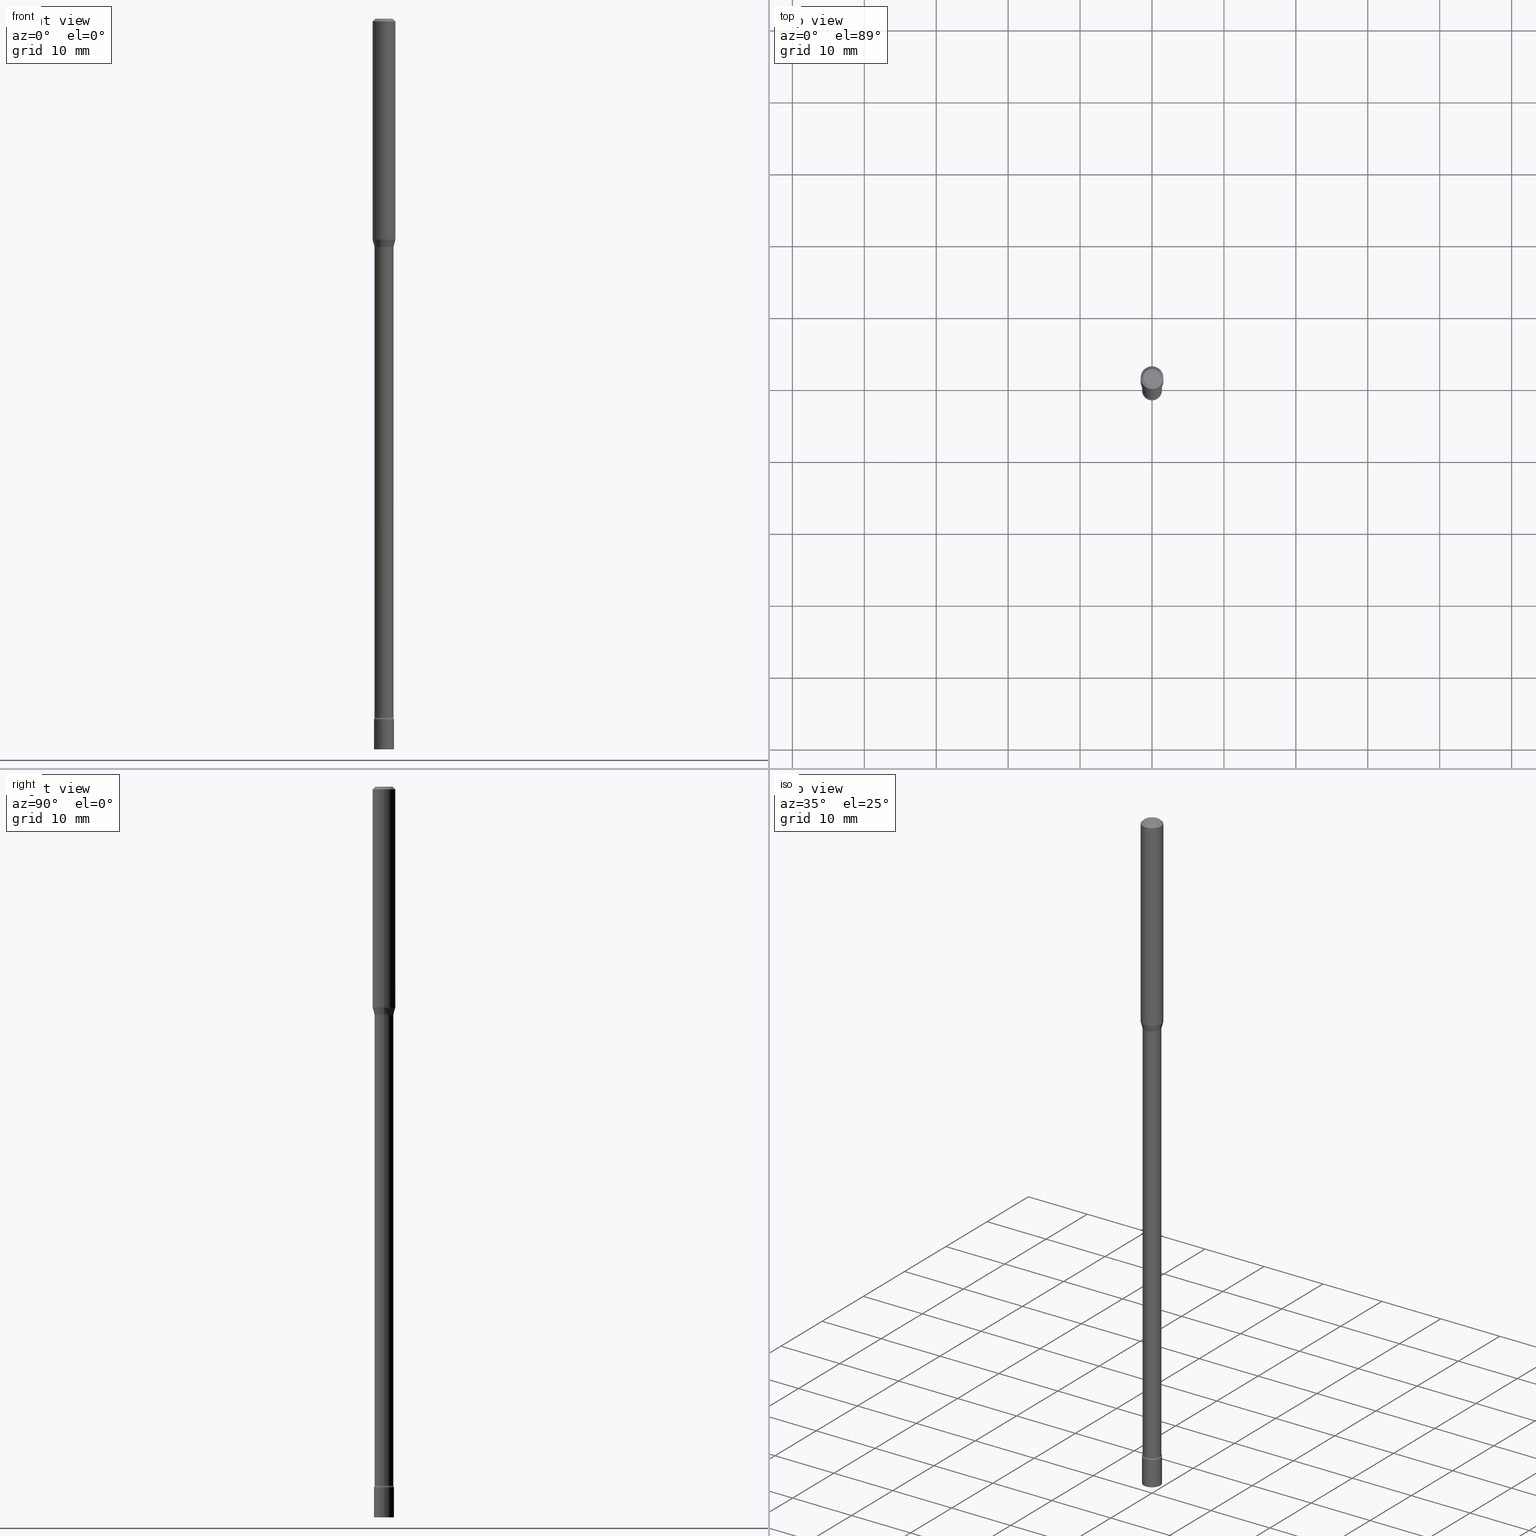
[diagram: canonical four-view strip — front | top / right | iso, engineering-drawing reading convention]
A machine part, canonical four-view strip (front | top / right | iso — engineering-drawing reading convention). The complete STEP part file that produces these views, byte-faithful:
ISO-10303-21;
HEADER;
FILE_DESCRIPTION (( 'STEP AP203' ),
    '1' );
FILE_NAME ('09766.STEP',
    '2024-03-09T01:51:35',
    ( '' ),
    ( '' ),
    'SwSTEP 2.0',
    'SolidWorks 2023',
    '' );
FILE_SCHEMA (( 'CONFIG_CONTROL_DESIGN' ));
ENDSEC;

DATA;
#1 = APPROVAL_ROLE ( '' ) ;
#2 = ORIENTED_EDGE ( 'NONE', *, *, #494, .T. ) ;
#3 = EDGE_LOOP ( 'NONE', ( #397, #445, #237, #352 ) ) ;
#4 = VECTOR ( 'NONE', #121, 39.37007874015748143 ) ;
#5 = ORIENTED_EDGE ( 'NONE', *, *, #433, .T. ) ;
#6 = DIRECTION ( 'NONE',  ( 1.000000000000000000, -6.982962677686265922E-15, 4.876176775795935793E-29 ) ) ;
#7 = CARTESIAN_POINT ( 'NONE',  ( 9.355418007508613870E-29, -1.335705747203898990E-14, -3.825613307291703347 ) ) ;
#8 = CC_DESIGN_PERSON_AND_ORGANIZATION_ASSIGNMENT ( #519, #361, ( #114 ) ) ;
#9 = ORIENTED_EDGE ( 'NONE', *, *, #463, .F. ) ;
#10 = DIRECTION ( 'NONE',  ( 1.000000000000000000, -6.982962677686270655E-15, 0.000000000000000000 ) ) ;
#11 = ORIENTED_EDGE ( 'NONE', *, *, #272, .T. ) ;
#12 = CYLINDRICAL_SURFACE ( 'NONE', #278, 0.06250000000000000000 ) ;
#13 = AXIS2_PLACEMENT_3D ( 'NONE', #455, #334, #454 ) ;
#14 = AXIS2_PLACEMENT_3D ( 'NONE', #292, #104, #300 ) ;
#15 = AXIS2_PLACEMENT_3D ( 'NONE', #197, #253, #10 ) ;
#16 = ADVANCED_FACE ( 'NONE', ( #236 ), #328, .F. ) ;
#17 = CARTESIAN_POINT ( 'NONE',  ( 0.04749999999999999362, -4.035134999187579609E-16, -2.891391092786643933E-17 ) ) ;
#18 = CARTESIAN_POINT ( 'NONE',  ( -0.04749999999999999362, 3.578768372314209027E-16, -2.891391092787141902E-17 ) ) ;
#19 = DIRECTION ( 'NONE',  ( -1.000000000000000000, 6.982962677686265922E-15, -4.876176775795935793E-29 ) ) ;
#20 = DIRECTION ( 'NONE',  ( -2.445468806185136597E-29, 3.491481338843145583E-15, 1.000000000000000000 ) ) ;
#21 = CARTESIAN_POINT ( 'NONE',  ( -0.06250000000000000000, -3.779534297601264220E-15, -1.209693851278256016 ) ) ;
#22 = LINE ( 'NONE', #390, #103 ) ;
#23 = AXIS2_PLACEMENT_3D ( 'NONE', #452, #246, #206 ) ;
#24 = DIRECTION ( 'NONE',  ( -1.000000000000000000, 7.105427357600997914E-15, 0.000000000000000000 ) ) ;
#25 =( NAMED_UNIT ( * ) PLANE_ANGLE_UNIT ( ) SI_UNIT ( $, .RADIAN. ) );
#26 = DIRECTION ( 'NONE',  ( -2.445468806185136597E-29, 3.491481338843145583E-15, 1.000000000000000000 ) ) ;
#27 = FACE_OUTER_BOUND ( 'NONE', #434, .T. ) ;
#28 = ORIENTED_EDGE ( 'NONE', *, *, #209, .F. ) ;
#29 = CARTESIAN_POINT ( 'NONE',  ( -0.06670000000000027296, -1.288312546728700163E-14, -3.825613307291703347 ) ) ;
#30 = CARTESIAN_POINT ( 'NONE',  ( 3.052171280354343376E-29, -4.357691679140319609E-15, -1.248092501787273045 ) ) ;
#31 = VECTOR ( 'NONE', #242, 39.37007874015748143 ) ;
#32 = LOCAL_TIME ( 20, 51, 35.00000000000000000, #73 ) ;
#33 = DIRECTION ( 'NONE',  ( 1.000000000000000000, -6.982962677686266711E-15, 0.000000000000000000 ) ) ;
#34 = APPROVAL_STATUS ( 'not_yet_approved' ) ;
#35 = ORIENTED_EDGE ( 'NONE', *, *, #245, .T. ) ;
#36 = EDGE_CURVE ( 'NONE', #438, #520, #423, .T. ) ;
#37 = ORIENTED_EDGE ( 'NONE', *, *, #150, .T. ) ;
#38 = CIRCLE ( 'NONE', #221, 0.01500000000000002720 ) ;
#39 = APPROVAL_ROLE ( '' ) ;
#40 = EDGE_LOOP ( 'NONE', ( #263, #41, #310, #2 ) ) ;
#41 = ORIENTED_EDGE ( 'NONE', *, *, #517, .F. ) ;
#42 = DATE_AND_TIME ( #405, #321 ) ;
#43 = VERTEX_POINT ( 'NONE', #362 ) ;
#44 = PRODUCT_DEFINITION_SHAPE ( 'NONE', 'NONE',  #418 ) ;
#45 = EDGE_LOOP ( 'NONE', ( #9, #269, #196, #109 ) ) ;
#46 = VERTEX_POINT ( 'NONE', #86 ) ;
#47 = AXIS2_PLACEMENT_3D ( 'NONE', #281, #189, #451 ) ;
#48 = EDGE_CURVE ( 'NONE', #483, #188, #435, .T. ) ;
#49 = AXIS2_PLACEMENT_3D ( 'NONE', #382, #293, #101 ) ;
#50 = DIRECTION ( 'NONE',  ( 1.000000000000000000, -6.982962677686274599E-15, 0.000000000000000000 ) ) ;
#51 = AXIS2_PLACEMENT_3D ( 'NONE', #141, #170, #426 ) ;
#52 = CYLINDRICAL_SURFACE ( 'NONE', #124, 0.05500000000000000028 ) ;
#53 = DIRECTION ( 'NONE',  ( -2.445468806185136597E-29, 3.491481338843145583E-15, 1.000000000000000000 ) ) ;
#54 = EDGE_CURVE ( 'NONE', #344, #119, #118, .T. ) ;
#55 = DIRECTION ( 'NONE',  ( 1.000000000000000000, -6.982962677686279332E-15, 0.000000000000000000 ) ) ;
#56 = AXIS2_PLACEMENT_3D ( 'NONE', #386, #99, #171 ) ;
#57 = LOCAL_TIME ( 20, 51, 35.00000000000000000, #395 ) ;
#58 = CARTESIAN_POINT ( 'NONE',  ( -0.05221111260566397433, -3.883121854431256076E-15, -1.248092501787273045 ) ) ;
#59 = CARTESIAN_POINT ( 'NONE',  ( -0.06669999999999999540, -3.897314602380022714E-15, -1.251974787463811190 ) ) ;
#60 = DIRECTION ( 'NONE',  ( 1.000000000000000000, -6.982962677686266711E-15, 4.876176775795935793E-29 ) ) ;
#61 = DIRECTION ( 'NONE',  ( -2.445468806185136597E-29, 3.491481338843145583E-15, 1.000000000000000000 ) ) ;
#62 = CC_DESIGN_DATE_AND_TIME_ASSIGNMENT ( #274, #516, ( #418 ) ) ;
#63 = CONICAL_SURFACE ( 'NONE', #357, 0.05221111260566397433, 0.2617993877991485197 ) ;
#64 = LINE ( 'NONE', #428, #233 ) ;
#65 = DIRECTION ( 'NONE',  ( 1.000000000000000000, -6.982962677686266711E-15, 0.000000000000000000 ) ) ;
#66 = DIRECTION ( 'NONE',  ( -2.445468806185136597E-29, 3.491481338843145583E-15, 1.000000000000000000 ) ) ;
#67 = ORIENTED_EDGE ( 'NONE', *, *, #187, .T. ) ;
#68 = PLANE ( 'NONE',  #476 ) ;
#69 = DIRECTION ( 'NONE',  ( -2.445468806185136597E-29, 3.491481338843145583E-15, 1.000000000000000000 ) ) ;
#70 = APPROVAL_DATE_TIME ( #355, #324 ) ;
#71 = DIRECTION ( 'NONE',  ( -2.438088387897960049E-29, 3.491481338843145188E-15, 1.000000000000000000 ) ) ;
#72 = ORIENTED_EDGE ( 'NONE', *, *, #229, .F. ) ;
#73 = COORDINATED_UNIVERSAL_TIME_OFFSET ( 5, 0, .BEHIND. ) ;
#74 = DIRECTION ( 'NONE',  ( -2.445468806185136597E-29, 3.491481338843145583E-15, 1.000000000000000000 ) ) ;
#75 = ORIENTED_EDGE ( 'NONE', *, *, #346, .T. ) ;
#76 = AXIS2_PLACEMENT_3D ( 'NONE', #495, #492, #93 ) ;
#77 = ORIENTED_EDGE ( 'NONE', *, *, #494, .F. ) ;
#78 = AXIS2_PLACEMENT_3D ( 'NONE', #285, #94, #283 ) ;
#79 = APPROVAL_PERSON_ORGANIZATION ( #117, #177, #1 ) ;
#80 = COORDINATED_UNIVERSAL_TIME_OFFSET ( 5, 0, .BEHIND. ) ;
#81 = ORIENTED_EDGE ( 'NONE', *, *, #482, .F. ) ;
#82 = DATE_AND_TIME ( #442, #32 ) ;
#83 = ADVANCED_FACE ( 'NONE', ( #396 ), #295, .F. ) ;
#84 = ORIENTED_EDGE ( 'NONE', *, *, #54, .F. ) ;
#85 = ADVANCED_BREP_SHAPE_REPRESENTATION ( '09766', ( #222, #407, #161 ), #234 ) ;
#86 = CARTESIAN_POINT ( 'NONE',  ( 0.05221111260566397433, -4.722279929826146004E-15, -1.248092501787273045 ) ) ;
#87 = APPLICATION_CONTEXT ( 'configuration controlled 3d designs of mechanical parts and assemblies' ) ;
#88 = AXIS2_PLACEMENT_3D ( 'NONE', #471, #130, #462 ) ;
#89 = CARTESIAN_POINT ( 'NONE',  ( -0.05499999999999997946, -1.299903242979540783E-14, -3.834999999999999964 ) ) ;
#90 = LOCAL_TIME ( 20, 51, 35.00000000000000000, #225 ) ;
#91 = UNCERTAINTY_MEASURE_WITH_UNIT (LENGTH_MEASURE( 1.000000000000000082E-05 ), #380, 'distance_accuracy_value', 'NONE');
#92 = PLANE ( 'NONE',  #154 ) ;
#93 = DIRECTION ( 'NONE',  ( 1.000000000000000000, -6.982962677686266711E-15, 4.876176775795935793E-29 ) ) ;
#94 = DIRECTION ( 'NONE',  ( -2.445468806185136597E-29, 3.491481338843145583E-15, 1.000000000000000000 ) ) ;
#95 = CIRCLE ( 'NONE', #400, 0.05170000000000000984 ) ;
#96 = LOCAL_TIME ( 20, 51, 35.00000000000000000, #80 ) ;
#97 = DIRECTION ( 'NONE',  ( -2.445468806185136597E-29, 3.491481338843145583E-15, 1.000000000000000000 ) ) ;
#98 = CC_DESIGN_PERSON_AND_ORGANIZATION_ASSIGNMENT ( #235, #238, ( #338 ) ) ;
#99 = DIRECTION ( 'NONE',  ( 2.445468806185136597E-29, -3.491481338843145583E-15, -1.000000000000000000 ) ) ;
#100 = ORIENTED_EDGE ( 'NONE', *, *, #182, .T. ) ;
#101 = DIRECTION ( 'NONE',  ( 1.000000000000000000, -6.982962677686279332E-15, 0.000000000000000000 ) ) ;
#102 = CARTESIAN_POINT ( 'NONE',  ( 0.000000000000000000, 0.000000000000000000, 0.000000000000000000 ) ) ;
#103 = VECTOR ( 'NONE', #351, 39.37007874015748143 ) ;
#104 = DIRECTION ( 'NONE',  ( -2.445468806185136597E-29, 3.491481338843145583E-15, 1.000000000000000000 ) ) ;
#105 = ADVANCED_FACE ( 'NONE', ( #275 ), #243, .T. ) ;
#106 = CYLINDRICAL_SURFACE ( 'NONE', #268, 0.05500000000000000028 ) ;
#107 = DIRECTION ( 'NONE',  ( -2.445468806185136877E-29, 3.491481338843145188E-15, 1.000000000000000000 ) ) ;
#108 = CARTESIAN_POINT ( 'NONE',  ( 0.000000000000000000, 0.000000000000000000, 0.000000000000000000 ) ) ;
#109 = ORIENTED_EDGE ( 'NONE', *, *, #439, .F. ) ;
#110 = CONICAL_SURFACE ( 'NONE', #56, 0.06250000000000000000, 0.7853981633974483900 ) ;
#111 = VERTEX_POINT ( 'NONE', #58 ) ;
#112 = ORIENTED_EDGE ( 'NONE', *, *, #412, .T. ) ;
#113 = ORIENTED_EDGE ( 'NONE', *, *, #302, .F. ) ;
#114 = PRODUCT ( '09766', '09766', '', ( #353 ) ) ;
#115 = CARTESIAN_POINT ( 'NONE',  ( -0.06250000000000000000, 4.440892098500626162E-16, -3.074334431409316114E-30 ) ) ;
#116 = ADVANCED_FACE ( 'NONE', ( #419 ), #290, .T. ) ;
#117 = PERSON_AND_ORGANIZATION ( #391, #129 ) ;
#118 = LINE ( 'NONE', #115, #31 ) ;
#119 = VERTEX_POINT ( 'NONE', #286 ) ;
#120 = VERTEX_POINT ( 'NONE', #156 ) ;
#121 = DIRECTION ( 'NONE',  ( -2.445468806185136877E-29, 3.491481338843145188E-15, 1.000000000000000000 ) ) ;
#122 = ADVANCED_FACE ( 'NONE', ( #461 ), #12, .T. ) ;
#123 = DIRECTION ( 'NONE',  ( -1.000000000000000000, 6.982962677686265922E-15, -4.876176775795935793E-29 ) ) ;
#124 = AXIS2_PLACEMENT_3D ( 'NONE', #327, #97, #413 ) ;
#125 = DIRECTION ( 'NONE',  ( -2.445468806185136597E-29, 3.491481338843145583E-15, 1.000000000000000000 ) ) ;
#126 = DIRECTION ( 'NONE',  ( -2.445468806185136597E-29, 3.491481338843145583E-15, 1.000000000000000000 ) ) ;
#127 = DIRECTION ( 'NONE',  ( -0.7071067811865475727, 2.468850131082257455E-15, -0.7071067811865474617 ) ) ;
#128 = CIRCLE ( 'NONE', #458, 0.05500000000000000028 ) ;
#129 = ORGANIZATION ( 'UNSPECIFIED', 'UNSPECIFIED', '' ) ;
#130 = DIRECTION ( 'NONE',  ( -2.445468806185136597E-29, 3.491481338843145583E-15, 1.000000000000000000 ) ) ;
#131 = CARTESIAN_POINT ( 'NONE',  ( 0.05500000000000000028, -1.377389388173620747E-14, -3.834999999999999964 ) ) ;
#132 = DIRECTION ( 'NONE',  ( -2.438088387897960049E-29, 3.491481338843145188E-15, 1.000000000000000000 ) ) ;
#133 = LINE ( 'NONE', #465, #297 ) ;
#134 = DIRECTION ( 'NONE',  ( -2.445468806185136597E-29, 3.491481338843145583E-15, 1.000000000000000000 ) ) ;
#135 = CIRCLE ( 'NONE', #365, 0.05500000000000000028 ) ;
#136 = CIRCLE ( 'NONE', #23, 0.05170000000000028739 ) ;
#137 = CIRCLE ( 'NONE', #51, 0.04749999999999999362 ) ;
#138 = PLANE ( 'NONE',  #284 ) ;
#139 = ORIENTED_EDGE ( 'NONE', *, *, #198, .T. ) ;
#140 = DIRECTION ( 'NONE',  ( 7.105427357601001859E-15, 1.000000000000000000, -3.491481338843145583E-15 ) ) ;
#141 = CARTESIAN_POINT ( 'NONE',  ( 7.070806723891919892E-46, -1.009523804376275404E-31, -2.891391092786900929E-17 ) ) ;
#142 = ADVANCED_FACE ( 'NONE', ( #330 ), #466, .F. ) ;
#143 = DIRECTION ( 'NONE',  ( -2.445468806185136597E-29, 3.491481338843145583E-15, 1.000000000000000000 ) ) ;
#144 = VERTEX_POINT ( 'NONE', #89 ) ;
#145 = DATE_TIME_ROLE ( 'classification_date' ) ;
#146 = ADVANCED_FACE ( 'NONE', ( #410 ), #52, .T. ) ;
#147 = CIRCLE ( 'NONE', #232, 0.06250000000000000000 ) ;
#148 = EDGE_LOOP ( 'NONE', ( #354, #153, #5, #503 ) ) ;
#149 = ORIENTED_EDGE ( 'NONE', *, *, #291, .T. ) ;
#150 = EDGE_CURVE ( 'NONE', #520, #438, #135, .T. ) ;
#151 = APPROVAL_STATUS ( 'not_yet_approved' ) ;
#152 = APPLICATION_PROTOCOL_DEFINITION ( 'international standard', 'config_control_design', 1994, #87 ) ;
#153 = ORIENTED_EDGE ( 'NONE', *, *, #457, .T. ) ;
#154 = AXIS2_PLACEMENT_3D ( 'NONE', #247, #411, #19 ) ;
#155 = CARTESIAN_POINT ( 'NONE',  ( 0.06250000000000000000, -4.660058674806718506E-15, -1.209693851278256016 ) ) ;
#156 = CARTESIAN_POINT ( 'NONE',  ( -0.05500000000000000028, -1.328707964024996617E-14, -4.000000000000000000 ) ) ;
#157 = CC_DESIGN_PERSON_AND_ORGANIZATION_ASSIGNMENT ( #306, #314, ( #298 ) ) ;
#158 = VERTEX_POINT ( 'NONE', #18 ) ;
#159 = CLOSED_SHELL ( 'NONE', ( #510, #403, #146, #194 ) ) ;
#160 = AXIS2_PLACEMENT_3D ( 'NONE', #59, #140, #501 ) ;
#161 = AXIS2_PLACEMENT_3D ( 'NONE', #480, #179, #276 ) ;
#162 = CARTESIAN_POINT ( 'NONE',  ( -0.05170000000000028739, -1.299436965372321268E-14, -3.825613307291703347 ) ) ;
#163 = FACE_OUTER_BOUND ( 'NONE', #473, .T. ) ;
#164 = FACE_OUTER_BOUND ( 'NONE', #3, .T. ) ;
#165 = AXIS2_PLACEMENT_3D ( 'NONE', #29, #431, #24 ) ;
#166 = DIRECTION ( 'NONE',  ( 1.000000000000000000, -6.982962677686266711E-15, 4.876176775795935793E-29 ) ) ;
#167 = ORIENTED_EDGE ( 'NONE', *, *, #272, .F. ) ;
#168 = DIRECTION ( 'NONE',  ( 1.000000000000000000, -6.982962677686265922E-15, 4.876176775795935793E-29 ) ) ;
#169 = LINE ( 'NONE', #505, #288 ) ;
#170 = DIRECTION ( 'NONE',  ( -2.445468806185136597E-29, 3.491481338843145583E-15, 1.000000000000000000 ) ) ;
#171 = DIRECTION ( 'NONE',  ( -1.000000000000000000, 6.982962677686266711E-15, 0.000000000000000000 ) ) ;
#172 = DIRECTION ( 'NONE',  ( -2.445468806185136877E-29, 3.491481338843145188E-15, 1.000000000000000000 ) ) ;
#173 = VECTOR ( 'NONE', #350, 39.37007874015748143 ) ;
#174 = CARTESIAN_POINT ( 'NONE',  ( 3.668203209277712094E-31, -5.237222008264728876E-17, -0.01500000000000003067 ) ) ;
#175 = VERTEX_POINT ( 'NONE', #162 ) ;
#176 = SECURITY_CLASSIFICATION_LEVEL ( 'unclassified' ) ;
#177 = APPROVAL ( #34, 'UNSPECIFIED' ) ;
#178 = EDGE_LOOP ( 'NONE', ( #81, #35, #240, #305 ) ) ;
#179 = DIRECTION ( 'NONE',  ( 0.000000000000000000, 0.000000000000000000, 1.000000000000000000 ) ) ;
#180 = CARTESIAN_POINT ( 'NONE',  ( 0.05500000000000000028, -1.434998830264532732E-14, -4.000000000000000000 ) ) ;
#181 = AXIS2_PLACEMENT_3D ( 'NONE', #227, #312, #408 ) ;
#182 = EDGE_CURVE ( 'NONE', #441, #43, #95, .T. ) ;
#183 = AXIS2_PLACEMENT_3D ( 'NONE', #108, #383, #60 ) ;
#184 = EDGE_LOOP ( 'NONE', ( #112, #447, #360, #385 ) ) ;
#185 = SHAPE_DEFINITION_REPRESENTATION ( #44, #85 ) ;
#186 = DIRECTION ( 'NONE',  ( 2.445468806185136597E-29, -3.491481338843145583E-15, -1.000000000000000000 ) ) ;
#187 = EDGE_CURVE ( 'NONE', #215, #344, #200, .T. ) ;
#188 = VERTEX_POINT ( 'NONE', #202 ) ;
#189 = DIRECTION ( 'NONE',  ( -2.445468806185136597E-29, 3.491481338843145583E-15, 1.000000000000000000 ) ) ;
#190 = ORIENTED_EDGE ( 'NONE', *, *, #433, .F. ) ;
#191 = APPROVAL_STATUS ( 'not_yet_approved' ) ;
#192 = AXIS2_PLACEMENT_3D ( 'NONE', #443, #74, #231 ) ;
#193 = VECTOR ( 'NONE', #127, 39.37007874015748143 ) ;
#194 = ADVANCED_FACE ( 'NONE', ( #195 ), #92, .T. ) ;
#195 = FACE_OUTER_BOUND ( 'NONE', #273, .T. ) ;
#196 = ORIENTED_EDGE ( 'NONE', *, *, #266, .T. ) ;
#197 = CARTESIAN_POINT ( 'NONE',  ( 2.958268578334937161E-29, -4.223623507451326836E-15, -1.209693851278256016 ) ) ;
#198 = EDGE_CURVE ( 'NONE', #144, #188, #128, .T. ) ;
#199 = CARTESIAN_POINT ( 'NONE',  ( 3.061665288873016119E-29, -4.371246607132010195E-15, -1.251974787463811190 ) ) ;
#200 = CIRCLE ( 'NONE', #15, 0.06250000000000000000 ) ;
#201 = APPROVAL_PERSON_ORGANIZATION ( #226, #489, #317 ) ;
#202 = CARTESIAN_POINT ( 'NONE',  ( 0.05499999999999997946, -1.377389388173620747E-14, -3.834999999999999964 ) ) ;
#203 = EDGE_CURVE ( 'NONE', #158, #119, #490, .T. ) ;
#204 = ADVANCED_FACE ( 'NONE', ( #163 ), #320, .F. ) ;
#205 = CARTESIAN_POINT ( 'NONE',  ( 3.061665288873016119E-29, -4.371246607132010195E-15, -1.251974787463811190 ) ) ;
#206 = DIRECTION ( 'NONE',  ( 1.000000000000000000, -6.982962677686254878E-15, 0.000000000000000000 ) ) ;
#207 = CARTESIAN_POINT ( 'NONE',  ( 2.958268578334937161E-29, -4.223623507451326836E-15, -1.209693851278256016 ) ) ;
#208 = PLANE ( 'NONE',  #409 ) ;
#209 = EDGE_CURVE ( 'NONE', #483, #175, #378, .T. ) ;
#210 = LINE ( 'NONE', #500, #173 ) ;
#211 = CIRCLE ( 'NONE', #252, 0.06250000000000000000 ) ;
#212 = ORIENTED_EDGE ( 'NONE', *, *, #309, .F. ) ;
#213 = CARTESIAN_POINT ( 'NONE',  ( 3.668203209277712094E-31, -5.237222008264728876E-17, -0.01500000000000003067 ) ) ;
#214 = DIRECTION ( 'NONE',  ( 1.000000000000000000, -6.982962677686266711E-15, 0.000000000000000000 ) ) ;
#215 = VERTEX_POINT ( 'NONE', #155 ) ;
#216 = FACE_OUTER_BOUND ( 'NONE', #184, .T. ) ;
#217 = DIRECTION ( 'NONE',  ( -2.445468806185136597E-29, 3.491481338843145583E-15, 1.000000000000000000 ) ) ;
#218 = ORIENTED_EDGE ( 'NONE', *, *, #412, .F. ) ;
#219 = CARTESIAN_POINT ( 'NONE',  ( 3.316907271900976096E-16, 0.04749999999999999362, -1.803023190589839165E-16 ) ) ;
#220 = DIRECTION ( 'NONE',  ( 1.000000000000000000, -6.982962677686279332E-15, 0.000000000000000000 ) ) ;
#221 = AXIS2_PLACEMENT_3D ( 'NONE', #342, #345, #379 ) ;
#222 = MANIFOLD_SOLID_BREP ( 'Body-Move/Copy2[1]', #159 ) ;
#223 = ORIENTED_EDGE ( 'NONE', *, *, #48, .T. ) ;
#224 = CC_DESIGN_PERSON_AND_ORGANIZATION_ASSIGNMENT ( #311, #398, ( #338 ) ) ;
#225 = COORDINATED_UNIVERSAL_TIME_OFFSET ( 5, 0, .BEHIND. ) ;
#226 = PERSON_AND_ORGANIZATION ( #391, #129 ) ;
#227 = CARTESIAN_POINT ( 'NONE',  ( 3.061665288873016119E-29, -4.371246607132010195E-15, -1.251974787463811190 ) ) ;
#228 = ORIENTED_EDGE ( 'NONE', *, *, #308, .F. ) ;
#229 = EDGE_CURVE ( 'NONE', #43, #441, #371, .T. ) ;
#230 = APPROVAL_DATE_TIME ( #82, #177 ) ;
#231 = DIRECTION ( 'NONE',  ( 1.000000000000000000, -6.982962677686262766E-15, 4.883557194083111219E-29 ) ) ;
#232 = AXIS2_PLACEMENT_3D ( 'NONE', #213, #134, #339 ) ;
#233 = VECTOR ( 'NONE', #107, 39.37007874015748143 ) ;
#234 =( GEOMETRIC_REPRESENTATION_CONTEXT ( 3 ) GLOBAL_UNCERTAINTY_ASSIGNED_CONTEXT ( ( #91 ) ) GLOBAL_UNIT_ASSIGNED_CONTEXT ( ( #380, #25, #343 ) ) REPRESENTATION_CONTEXT ( 'NONE', 'WORKASPACE' ) );
#235 = PERSON_AND_ORGANIZATION ( #391, #129 ) ;
#236 = FACE_OUTER_BOUND ( 'NONE', #392, .T. ) ;
#237 = ORIENTED_EDGE ( 'NONE', *, *, #308, .T. ) ;
#238 = PERSON_AND_ORGANIZATION_ROLE ( 'design_supplier' ) ;
#239 = ORIENTED_EDGE ( 'NONE', *, *, #150, .F. ) ;
#240 = ORIENTED_EDGE ( 'NONE', *, *, #241, .T. ) ;
#241 = EDGE_CURVE ( 'NONE', #483, #43, #325, .T. ) ;
#242 = DIRECTION ( 'NONE',  ( -2.445468806185136877E-29, 3.491481338843145188E-15, 1.000000000000000000 ) ) ;
#243 = CONICAL_SURFACE ( 'NONE', #467, 0.06250000000000000000, 0.7853981633974483900 ) ;
#244 = VECTOR ( 'NONE', #301, 39.37007874015748143 ) ;
#245 = EDGE_CURVE ( 'NONE', #175, #483, #136, .T. ) ;
#246 = DIRECTION ( 'NONE',  ( -2.445468806185136597E-29, 3.491481338843145583E-15, 1.000000000000000000 ) ) ;
#247 = CARTESIAN_POINT ( 'NONE',  ( 3.840629472728425076E-16, 0.05499999999998603922, -4.000000000000000000 ) ) ;
#248 = DIRECTION ( 'NONE',  ( -2.445468806185136597E-29, 3.491481338843145583E-15, 1.000000000000000000 ) ) ;
#249 = EDGE_CURVE ( 'NONE', #111, #46, #436, .T. ) ;
#250 = AXIS2_PLACEMENT_3D ( 'NONE', #271, #481, #50 ) ;
#251 = CIRCLE ( 'NONE', #453, 0.06250000000000000000 ) ;
#252 = AXIS2_PLACEMENT_3D ( 'NONE', #174, #217, #214 ) ;
#253 = DIRECTION ( 'NONE',  ( -2.445468806185136597E-29, 3.491481338843145583E-15, 1.000000000000000000 ) ) ;
#254 = DIRECTION ( 'NONE',  ( 1.000000000000000000, -6.982962677686273021E-15, 0.000000000000000000 ) ) ;
#255 = LINE ( 'NONE', #340, #486 ) ;
#256 = CARTESIAN_POINT ( 'NONE',  ( 3.052171280354343376E-29, -4.357691679140319609E-15, -1.248092501787273045 ) ) ;
#257 = FACE_OUTER_BOUND ( 'NONE', #331, .T. ) ;
#258 = ADVANCED_FACE ( 'NONE', ( #499 ), #375, .T. ) ;
#259 = CIRCLE ( 'NONE', #165, 0.01499999999999998557 ) ;
#260 =( LENGTH_UNIT ( ) NAMED_UNIT ( * ) SI_UNIT ( $, .METRE. ) );
#261 = DIMENSIONAL_EXPONENTS ( 1.000000000000000000, 0.000000000000000000, 0.000000000000000000, 0.000000000000000000, 0.000000000000000000, 0.000000000000000000, 0.000000000000000000 ) ;
#262 = DIRECTION ( 'NONE',  ( 1.000000000000000000, -6.982962677686279332E-15, 0.000000000000000000 ) ) ;
#263 = ORIENTED_EDGE ( 'NONE', *, *, #449, .F. ) ;
#264 = DIRECTION ( 'NONE',  ( 1.000000000000000000, -6.982962677686267499E-15, 4.876681293081646444E-29 ) ) ;
#265 = FACE_OUTER_BOUND ( 'NONE', #178, .T. ) ;
#266 = EDGE_CURVE ( 'NONE', #46, #215, #169, .T. ) ;
#267 = AXIS2_PLACEMENT_3D ( 'NONE', #205, #125, #254 ) ;
#268 = AXIS2_PLACEMENT_3D ( 'NONE', #102, #143, #166 ) ;
#269 = ORIENTED_EDGE ( 'NONE', *, *, #249, .T. ) ;
#270 = DATE_AND_TIME ( #478, #57 ) ;
#271 = CARTESIAN_POINT ( 'NONE',  ( 0.06670000000000027296, -1.382282108264066598E-14, -3.825613307291703347 ) ) ;
#272 = EDGE_CURVE ( 'NONE', #46, #43, #38, .T. ) ;
#273 = EDGE_LOOP ( 'NONE', ( #212, #388 ) ) ;
#274 = DATE_AND_TIME ( #485, #96 ) ;
#275 = FACE_OUTER_BOUND ( 'NONE', #40, .T. ) ;
#276 = DIRECTION ( 'NONE',  ( 1.000000000000000000, 0.000000000000000000, 0.000000000000000000 ) ) ;
#277 = ORIENTED_EDGE ( 'NONE', *, *, #291, .F. ) ;
#278 = AXIS2_PLACEMENT_3D ( 'NONE', #367, #248, #287 ) ;
#279 = CONICAL_SURFACE ( 'NONE', #14, 0.05221111260566397433, 0.2617993877991485197 ) ;
#280 = ORIENTED_EDGE ( 'NONE', *, *, #482, .T. ) ;
#281 = CARTESIAN_POINT ( 'NONE',  ( 9.378372871719999252E-29, -1.338983093446346249E-14, -3.834999999999999964 ) ) ;
#282 = CC_DESIGN_PERSON_AND_ORGANIZATION_ASSIGNMENT ( #322, #513, ( #418 ) ) ;
#283 = DIRECTION ( 'NONE',  ( 1.000000000000000000, -6.982962677686262766E-15, 4.883557194083111219E-29 ) ) ;
#284 = AXIS2_PLACEMENT_3D ( 'NONE', #511, #71, #6 ) ;
#285 = CARTESIAN_POINT ( 'NONE',  ( 9.355418007508613870E-29, -1.335705747203898990E-14, -3.825613307291703347 ) ) ;
#286 = CARTESIAN_POINT ( 'NONE',  ( -0.06250000000000000000, -1.693908653916924342E-15, -0.01500000000000003067 ) ) ;
#287 = DIRECTION ( 'NONE',  ( 1.000000000000000000, -6.982962677686266711E-15, 4.876176775795935793E-29 ) ) ;
#288 = VECTOR ( 'NONE', #348, 39.37007874015748143 ) ;
#289 = CC_DESIGN_SECURITY_CLASSIFICATION ( #298, ( #338 ) ) ;
#290 = CYLINDRICAL_SURFACE ( 'NONE', #76, 0.06250000000000000000 ) ;
#291 = EDGE_CURVE ( 'NONE', #111, #441, #515, .T. ) ;
#292 = CARTESIAN_POINT ( 'NONE',  ( 3.052171280354343376E-29, -4.357691679140319609E-15, -1.248092501787273045 ) ) ;
#293 = DIRECTION ( 'NONE',  ( -2.445468806185136597E-29, 3.491481338843145583E-15, 1.000000000000000000 ) ) ;
#294 = DIRECTION ( 'NONE',  ( -2.445468806185136877E-29, 3.491481338843145188E-15, 1.000000000000000000 ) ) ;
#295 = TOROIDAL_SURFACE ( 'NONE', #192, 0.06670000000000027296, 0.01499999999999997689 ) ;
#296 = CARTESIAN_POINT ( 'NONE',  ( 9.781875224740546387E-29, -1.396592535537258233E-14, -4.000000000000000000 ) ) ;
#297 = VECTOR ( 'NONE', #172, 39.37007874015748143 ) ;
#298 = SECURITY_CLASSIFICATION ( '', '', #176 ) ;
#299 = EDGE_LOOP ( 'NONE', ( #316, #280, #72, #358 ) ) ;
#300 = DIRECTION ( 'NONE',  ( 1.000000000000000000, -6.982962677686266711E-15, 0.000000000000000000 ) ) ;
#301 = DIRECTION ( 'NONE',  ( -2.445468806185136877E-29, 3.491481338843145188E-15, 1.000000000000000000 ) ) ;
#302 = EDGE_CURVE ( 'NONE', #188, #144, #496, .T. ) ;
#303 = EDGE_LOOP ( 'NONE', ( #113, #479 ) ) ;
#304 = CYLINDRICAL_SURFACE ( 'NONE', #183, 0.05170000000000014168 ) ;
#305 = ORIENTED_EDGE ( 'NONE', *, *, #182, .F. ) ;
#306 = PERSON_AND_ORGANIZATION ( #391, #129 ) ;
#307 = AXIS2_PLACEMENT_3D ( 'NONE', #7, #53, #416 ) ;
#308 = EDGE_CURVE ( 'NONE', #319, #119, #147, .T. ) ;
#309 = EDGE_CURVE ( 'NONE', #406, #120, #506, .T. ) ;
#310 = ORIENTED_EDGE ( 'NONE', *, *, #203, .T. ) ;
#311 = PERSON_AND_ORGANIZATION ( #391, #129 ) ;
#312 = DIRECTION ( 'NONE',  ( -2.445468806185136597E-29, 3.491481338843145583E-15, 1.000000000000000000 ) ) ;
#313 = EDGE_LOOP ( 'NONE', ( #67, #512, #228, #450 ) ) ;
#314 = PERSON_AND_ORGANIZATION_ROLE ( 'classification_officer' ) ;
#315 = ORIENTED_EDGE ( 'NONE', *, *, #376, .T. ) ;
#316 = ORIENTED_EDGE ( 'NONE', *, *, #209, .T. ) ;
#317 = APPROVAL_ROLE ( '' ) ;
#318 = ORIENTED_EDGE ( 'NONE', *, *, #48, .F. ) ;
#319 = VERTEX_POINT ( 'NONE', #469 ) ;
#320 = TOROIDAL_SURFACE ( 'NONE', #78, 0.06670000000000027296, 0.01499999999999997689 ) ;
#321 = LOCAL_TIME ( 20, 51, 35.00000000000000000, #402 ) ;
#322 = PERSON_AND_ORGANIZATION ( #391, #129 ) ;
#323 = ORIENTED_EDGE ( 'NONE', *, *, #245, .F. ) ;
#324 = APPROVAL ( #191, 'UNSPECIFIED' ) ;
#325 = LINE ( 'NONE', #488, #4 ) ;
#326 = DIRECTION ( 'NONE',  ( 2.438088387897960049E-29, -3.491481338843145188E-15, -1.000000000000000000 ) ) ;
#327 = CARTESIAN_POINT ( 'NONE',  ( 0.000000000000000000, 0.000000000000000000, 0.000000000000000000 ) ) ;
#328 = TOROIDAL_SURFACE ( 'NONE', #181, 0.06669999999999999540, 0.01500000000000002373 ) ;
#329 = AXIS2_PLACEMENT_3D ( 'NONE', #432, #66, #220 ) ;
#330 = FACE_OUTER_BOUND ( 'NONE', #404, .T. ) ;
#331 = EDGE_LOOP ( 'NONE', ( #381, #401 ) ) ;
#332 = DIRECTION ( 'NONE',  ( -2.445468806185136597E-29, 3.491481338843145583E-15, 1.000000000000000000 ) ) ;
#333 = APPLICATION_CONTEXT ( 'configuration controlled 3d designs of mechanical parts and assemblies' ) ;
#334 = DIRECTION ( 'NONE',  ( -2.445468806185136597E-29, 3.491481338843145583E-15, 1.000000000000000000 ) ) ;
#335 = ADVANCED_FACE ( 'NONE', ( #216 ), #279, .T. ) ;
#336 = ORIENTED_EDGE ( 'NONE', *, *, #229, .T. ) ;
#337 = AXIS2_PLACEMENT_3D ( 'NONE', #421, #61, #264 ) ;
#338 = PRODUCT_DEFINITION_FORMATION_WITH_SPECIFIED_SOURCE ( 'ANY', '', #114, .NOT_KNOWN. ) ;
#339 = DIRECTION ( 'NONE',  ( 1.000000000000000000, -6.982962677686266711E-15, 0.000000000000000000 ) ) ;
#340 = CARTESIAN_POINT ( 'NONE',  ( -0.05500000000000000028, 3.907985046680551042E-16, -2.705414299640198362E-30 ) ) ;
#341 = CC_DESIGN_DATE_AND_TIME_ASSIGNMENT ( #42, #145, ( #298 ) ) ;
#342 = CARTESIAN_POINT ( 'NONE',  ( 0.06669999999999999540, -4.837010217733683913E-15, -1.251974787463811190 ) ) ;
#343 =( NAMED_UNIT ( * ) SI_UNIT ( $, .STERADIAN. ) SOLID_ANGLE_UNIT ( ) );
#344 = VERTEX_POINT ( 'NONE', #21 ) ;
#345 = DIRECTION ( 'NONE',  ( -6.982962677686266711E-15, -1.000000000000000000, 3.491481338843145583E-15 ) ) ;
#346 = EDGE_CURVE ( 'NONE', #215, #319, #64, .T. ) ;
#347 = ADVANCED_FACE ( 'NONE', ( #164 ), #110, .T. ) ;
#348 = DIRECTION ( 'NONE',  ( 0.2588190451025198513, 1.565188264969633801E-15, 0.9659258262890685343 ) ) ;
#349 = AXIS2_PLACEMENT_3D ( 'NONE', #256, #26, #65 ) ;
#350 = DIRECTION ( 'NONE',  ( 0.7071067811865475727, -7.319954787623256045E-15, -0.7071067811865474617 ) ) ;
#351 = DIRECTION ( 'NONE',  ( -0.2588190451025198513, 5.211531920934540787E-15, 0.9659258262890685343 ) ) ;
#352 = ORIENTED_EDGE ( 'NONE', *, *, #203, .F. ) ;
#353 = MECHANICAL_CONTEXT ( 'NONE', #333, 'mechanical' ) ;
#354 = ORIENTED_EDGE ( 'NONE', *, *, #487, .F. ) ;
#355 = DATE_AND_TIME ( #393, #90 ) ;
#356 = EDGE_LOOP ( 'NONE', ( #323, #315, #139, #318 ) ) ;
#357 = AXIS2_PLACEMENT_3D ( 'NONE', #30, #420, #502 ) ;
#358 = ORIENTED_EDGE ( 'NONE', *, *, #241, .F. ) ;
#359 = DIRECTION ( 'NONE',  ( -1.000000000000000000, 6.982962677686266711E-15, 0.000000000000000000 ) ) ;
#360 = ORIENTED_EDGE ( 'NONE', *, *, #187, .F. ) ;
#361 = PERSON_AND_ORGANIZATION_ROLE ( 'design_owner' ) ;
#362 = CARTESIAN_POINT ( 'NONE',  ( 0.05170000000000000984, -4.732265777568390544E-15, -1.251974787463811190 ) ) ;
#363 = ORIENTED_EDGE ( 'NONE', *, *, #439, .T. ) ;
#364 = APPROVAL_DATE_TIME ( #270, #489 ) ;
#365 = AXIS2_PLACEMENT_3D ( 'NONE', #374, #126, #55 ) ;
#366 = CARTESIAN_POINT ( 'NONE',  ( -0.06250000000000000000, 3.840629472727443437E-16, -0.01500000000000003067 ) ) ;
#367 = CARTESIAN_POINT ( 'NONE',  ( 0.000000000000000000, 0.000000000000000000, 0.000000000000000000 ) ) ;
#368 = EDGE_LOOP ( 'NONE', ( #84, #363, #75, #77 ) ) ;
#369 = EDGE_CURVE ( 'NONE', #394, #158, #491, .T. ) ;
#370 = CARTESIAN_POINT ( 'NONE',  ( 9.378372871719999252E-29, -1.338983093446346249E-14, -3.834999999999999964 ) ) ;
#371 = CIRCLE ( 'NONE', #267, 0.05170000000000000984 ) ;
#372 = DIRECTION ( 'NONE',  ( 1.000000000000000000, -6.982962677686279332E-15, 0.000000000000000000 ) ) ;
#373 = ADVANCED_FACE ( 'NONE', ( #464 ), #208, .F. ) ;
#374 = CARTESIAN_POINT ( 'NONE',  ( 9.378372871719999252E-29, -1.338983093446346249E-14, -3.834999999999999964 ) ) ;
#375 = CYLINDRICAL_SURFACE ( 'NONE', #88, 0.05170000000000014168 ) ;
#376 = EDGE_CURVE ( 'NONE', #175, #144, #259, .T. ) ;
#377 = FACE_OUTER_BOUND ( 'NONE', #45, .T. ) ;
#378 = CIRCLE ( 'NONE', #307, 0.05170000000000028739 ) ;
#379 = DIRECTION ( 'NONE',  ( 1.000000000000000000, -6.982962677686255667E-15, 0.000000000000000000 ) ) ;
#380 =( CONVERSION_BASED_UNIT ( 'INCH', #422 ) LENGTH_UNIT ( ) NAMED_UNIT ( #261 ) );
#381 = ORIENTED_EDGE ( 'NONE', *, *, #517, .T. ) ;
#382 = CARTESIAN_POINT ( 'NONE',  ( 9.378372871719999252E-29, -1.338983093446346249E-14, -3.834999999999999964 ) ) ;
#383 = DIRECTION ( 'NONE',  ( -2.445468806185136597E-29, 3.491481338843145583E-15, 1.000000000000000000 ) ) ;
#384 = ADVANCED_FACE ( 'NONE', ( #257 ), #68, .F. ) ;
#385 = ORIENTED_EDGE ( 'NONE', *, *, #266, .F. ) ;
#386 = CARTESIAN_POINT ( 'NONE',  ( 3.668203209277712094E-31, -5.237222008264728876E-17, -0.01500000000000003067 ) ) ;
#387 = CARTESIAN_POINT ( 'NONE',  ( 0.05500000000000000028, -3.840629472727446888E-16, 2.681897226687764826E-30 ) ) ;
#388 = ORIENTED_EDGE ( 'NONE', *, *, #457, .F. ) ;
#389 = AXIS2_PLACEMENT_3D ( 'NONE', #417, #20, #33 ) ;
#390 = CARTESIAN_POINT ( 'NONE',  ( -0.05221111260566397433, -3.986709411261248720E-15, -1.248092501787273045 ) ) ;
#391 = PERSON ( 'UNSPECIFIED', 'UNSPECIFIED', 'UNSPECIFIED', ('UNSPECIFIED'), ('UNSPECIFIED'), ('UNSPECIFIED') ) ;
#392 = EDGE_LOOP ( 'NONE', ( #470, #149, #100, #167 ) ) ;
#393 = CALENDAR_DATE ( 2024, 8, 3 ) ;
#394 = VERTEX_POINT ( 'NONE', #17 ) ;
#395 = COORDINATED_UNIVERSAL_TIME_OFFSET ( 5, 0, .BEHIND. ) ;
#396 = FACE_OUTER_BOUND ( 'NONE', #356, .T. ) ;
#397 = ORIENTED_EDGE ( 'NONE', *, *, #369, .F. ) ;
#398 = PERSON_AND_ORGANIZATION_ROLE ( 'creator' ) ;
#399 = CARTESIAN_POINT ( 'NONE',  ( 3.668203209277712094E-31, -5.237222008264728876E-17, -0.01500000000000003067 ) ) ;
#400 = AXIS2_PLACEMENT_3D ( 'NONE', #199, #332, #456 ) ;
#401 = ORIENTED_EDGE ( 'NONE', *, *, #369, .T. ) ;
#402 = COORDINATED_UNIVERSAL_TIME_OFFSET ( 5, 0, .BEHIND. ) ;
#403 = ADVANCED_FACE ( 'NONE', ( #415 ), #138, .T. ) ;
#404 = EDGE_LOOP ( 'NONE', ( #277, #218, #11, #336 ) ) ;
#405 = CALENDAR_DATE ( 2024, 8, 3 ) ;
#406 = VERTEX_POINT ( 'NONE', #180 ) ;
#407 = MANIFOLD_SOLID_BREP ( 'Body-Move/Copy2[2]', #484 ) ;
#408 = DIRECTION ( 'NONE',  ( 1.000000000000000000, -6.982962677686269866E-15, 4.883557194083114022E-29 ) ) ;
#409 = AXIS2_PLACEMENT_3D ( 'NONE', #507, #132, #168 ) ;
#410 = FACE_OUTER_BOUND ( 'NONE', #148, .T. ) ;
#411 = DIRECTION ( 'NONE',  ( 2.438088387897960049E-29, -3.491481338843145188E-15, -1.000000000000000000 ) ) ;
#412 = EDGE_CURVE ( 'NONE', #46, #111, #414, .T. ) ;
#413 = DIRECTION ( 'NONE',  ( 1.000000000000000000, -6.982962677686266711E-15, 4.876176775795935793E-29 ) ) ;
#414 = CIRCLE ( 'NONE', #389, 0.05221111260566397433 ) ;
#415 = FACE_OUTER_BOUND ( 'NONE', #430, .T. ) ;
#416 = DIRECTION ( 'NONE',  ( 1.000000000000000000, -6.982962677686254878E-15, 0.000000000000000000 ) ) ;
#417 = CARTESIAN_POINT ( 'NONE',  ( 3.052171280354343376E-29, -4.357691679140319609E-15, -1.248092501787273045 ) ) ;
#418 = PRODUCT_DEFINITION ( 'UNKNOWN', '', #338, #460 ) ;
#419 = FACE_OUTER_BOUND ( 'NONE', #368, .T. ) ;
#420 = DIRECTION ( 'NONE',  ( -2.445468806185136597E-29, 3.491481338843145583E-15, 1.000000000000000000 ) ) ;
#421 = CARTESIAN_POINT ( 'NONE',  ( 7.070806723891919892E-46, -1.009523804376275404E-31, -2.891391092786900929E-17 ) ) ;
#422 = LENGTH_MEASURE_WITH_UNIT ( LENGTH_MEASURE( 0.02539999999999999897 ), #260 );
#423 = CIRCLE ( 'NONE', #47, 0.05500000000000000028 ) ;
#424 = CIRCLE ( 'NONE', #329, 0.05500000000000000028 ) ;
#425 = DIRECTION ( 'NONE',  ( -2.445468806185136597E-29, 3.491481338843145583E-15, 1.000000000000000000 ) ) ;
#426 = DIRECTION ( 'NONE',  ( 1.000000000000000000, -6.982962677686267499E-15, 4.876681293081646444E-29 ) ) ;
#427 = ORIENTED_EDGE ( 'NONE', *, *, #36, .T. ) ;
#428 = CARTESIAN_POINT ( 'NONE',  ( 0.06250000000000000000, -4.364351673553916694E-16, 3.047610484872459871E-30 ) ) ;
#429 = LINE ( 'NONE', #387, #244 ) ;
#430 = EDGE_LOOP ( 'NONE', ( #37, #427 ) ) ;
#431 = DIRECTION ( 'NONE',  ( 7.105427357601001859E-15, 1.000000000000000000, -3.491481338843145583E-15 ) ) ;
#432 = CARTESIAN_POINT ( 'NONE',  ( 9.781875224740546387E-29, -1.396592535537258233E-14, -4.000000000000000000 ) ) ;
#433 = EDGE_CURVE ( 'NONE', #406, #520, #429, .T. ) ;
#434 = EDGE_LOOP ( 'NONE', ( #475, #514, #239, #190 ) ) ;
#435 = CIRCLE ( 'NONE', #250, 0.01499999999999998557 ) ;
#436 = CIRCLE ( 'NONE', #349, 0.05221111260566397433 ) ;
#437 = PERSON_AND_ORGANIZATION ( #391, #129 ) ;
#438 = VERTEX_POINT ( 'NONE', #509 ) ;
#439 = EDGE_CURVE ( 'NONE', #344, #215, #251, .T. ) ;
#440 = APPLICATION_PROTOCOL_DEFINITION ( 'international standard', 'config_control_design', 1994, #333 ) ;
#441 = VERTEX_POINT ( 'NONE', #472 ) ;
#442 = CALENDAR_DATE ( 2024, 8, 3 ) ;
#443 = CARTESIAN_POINT ( 'NONE',  ( 9.355418007508613870E-29, -1.335705747203898990E-14, -3.825613307291703347 ) ) ;
#444 = ADVANCED_FACE ( 'NONE', ( #377 ), #63, .T. ) ;
#445 = ORIENTED_EDGE ( 'NONE', *, *, #449, .T. ) ;
#446 = ADVANCED_FACE ( 'NONE', ( #265 ), #304, .T. ) ;
#447 = ORIENTED_EDGE ( 'NONE', *, *, #463, .T. ) ;
#448 = CC_DESIGN_APPROVAL ( #324, ( #418 ) ) ;
#449 = EDGE_CURVE ( 'NONE', #394, #319, #210, .T. ) ;
#450 = ORIENTED_EDGE ( 'NONE', *, *, #346, .F. ) ;
#451 = DIRECTION ( 'NONE',  ( 1.000000000000000000, -6.982962677686279332E-15, 0.000000000000000000 ) ) ;
#452 = CARTESIAN_POINT ( 'NONE',  ( 9.355418007508613870E-29, -1.335705747203898990E-14, -3.825613307291703347 ) ) ;
#453 = AXIS2_PLACEMENT_3D ( 'NONE', #207, #69, #474 ) ;
#454 = DIRECTION ( 'NONE',  ( 1.000000000000000000, -6.982962677686269866E-15, 4.883557194083114022E-29 ) ) ;
#455 = CARTESIAN_POINT ( 'NONE',  ( 3.061665288873016119E-29, -4.371246607132010195E-15, -1.251974787463811190 ) ) ;
#456 = DIRECTION ( 'NONE',  ( 1.000000000000000000, -6.982962677686273021E-15, 0.000000000000000000 ) ) ;
#457 = EDGE_CURVE ( 'NONE', #120, #406, #424, .T. ) ;
#458 = AXIS2_PLACEMENT_3D ( 'NONE', #370, #493, #372 ) ;
#459 = APPROVAL_PERSON_ORGANIZATION ( #437, #324, #39 ) ;
#460 = DESIGN_CONTEXT ( 'detailed design', #87, 'design' ) ;
#461 = FACE_OUTER_BOUND ( 'NONE', #313, .T. ) ;
#462 = DIRECTION ( 'NONE',  ( 1.000000000000000000, -6.982962677686266711E-15, 4.876176775795935793E-29 ) ) ;
#463 = EDGE_CURVE ( 'NONE', #111, #344, #22, .T. ) ;
#464 = FACE_OUTER_BOUND ( 'NONE', #303, .T. ) ;
#465 = CARTESIAN_POINT ( 'NONE',  ( -0.05170000000000014168, 3.673505943879728028E-16, -2.543089441661793474E-30 ) ) ;
#466 = TOROIDAL_SURFACE ( 'NONE', #13, 0.06669999999999999540, 0.01500000000000002373 ) ;
#467 = AXIS2_PLACEMENT_3D ( 'NONE', #399, #186, #359 ) ;
#468 = AXIS2_PLACEMENT_3D ( 'NONE', #296, #425, #262 ) ;
#469 = CARTESIAN_POINT ( 'NONE',  ( 0.06250000000000000000, -4.888073874380389458E-16, -0.01500000000000003067 ) ) ;
#470 = ORIENTED_EDGE ( 'NONE', *, *, #249, .F. ) ;
#471 = CARTESIAN_POINT ( 'NONE',  ( 0.000000000000000000, 0.000000000000000000, 0.000000000000000000 ) ) ;
#472 = CARTESIAN_POINT ( 'NONE',  ( -0.05170000000000000984, -8.496801445197520588E-15, -1.251974787463811190 ) ) ;
#473 = EDGE_LOOP ( 'NONE', ( #518, #28, #223, #498 ) ) ;
#474 = DIRECTION ( 'NONE',  ( 1.000000000000000000, -6.982962677686270655E-15, 0.000000000000000000 ) ) ;
#475 = ORIENTED_EDGE ( 'NONE', *, *, #309, .T. ) ;
#476 = AXIS2_PLACEMENT_3D ( 'NONE', #219, #326, #123 ) ;
#477 = CC_DESIGN_APPROVAL ( #489, ( #298 ) ) ;
#478 = CALENDAR_DATE ( 2024, 8, 3 ) ;
#479 = ORIENTED_EDGE ( 'NONE', *, *, #198, .F. ) ;
#480 = CARTESIAN_POINT ( 'NONE',  ( 0.000000000000000000, 0.000000000000000000, 0.000000000000000000 ) ) ;
#481 = DIRECTION ( 'NONE',  ( -6.982962677686266711E-15, -1.000000000000000000, 3.491481338843145583E-15 ) ) ;
#482 = EDGE_CURVE ( 'NONE', #175, #441, #133, .T. ) ;
#483 = VERTEX_POINT ( 'NONE', #508 ) ;
#484 = CLOSED_SHELL ( 'NONE', ( #16, #258, #83, #347, #122, #335, #444, #116, #105, #384, #373, #204, #446, #142 ) ) ;
#485 = CALENDAR_DATE ( 2024, 8, 3 ) ;
#486 = VECTOR ( 'NONE', #294, 39.37007874015748143 ) ;
#487 = EDGE_CURVE ( 'NONE', #120, #438, #255, .T. ) ;
#488 = CARTESIAN_POINT ( 'NONE',  ( 0.05170000000000014168, -3.610191704363809896E-16, 2.520983393086505593E-30 ) ) ;
#489 = APPROVAL ( #151, 'UNSPECIFIED' ) ;
#490 = LINE ( 'NONE', #366, #193 ) ;
#491 = CIRCLE ( 'NONE', #337, 0.04749999999999999362 ) ;
#492 = DIRECTION ( 'NONE',  ( -2.445468806185136597E-29, 3.491481338843145583E-15, 1.000000000000000000 ) ) ;
#493 = DIRECTION ( 'NONE',  ( -2.445468806185136597E-29, 3.491481338843145583E-15, 1.000000000000000000 ) ) ;
#494 = EDGE_CURVE ( 'NONE', #119, #319, #211, .T. ) ;
#495 = CARTESIAN_POINT ( 'NONE',  ( 0.000000000000000000, 0.000000000000000000, 0.000000000000000000 ) ) ;
#496 = CIRCLE ( 'NONE', #49, 0.05500000000000000028 ) ;
#497 = CC_DESIGN_APPROVAL ( #177, ( #338 ) ) ;
#498 = ORIENTED_EDGE ( 'NONE', *, *, #302, .T. ) ;
#499 = FACE_OUTER_BOUND ( 'NONE', #299, .T. ) ;
#500 = CARTESIAN_POINT ( 'NONE',  ( 0.06250000000000000000, -4.811533449433680977E-16, -0.01500000000000003067 ) ) ;
#501 = DIRECTION ( 'NONE',  ( -1.000000000000000000, 7.105427357601009747E-15, 0.000000000000000000 ) ) ;
#502 = DIRECTION ( 'NONE',  ( 1.000000000000000000, -6.982962677686266711E-15, 0.000000000000000000 ) ) ;
#503 = ORIENTED_EDGE ( 'NONE', *, *, #36, .F. ) ;
#504 = PRODUCT_RELATED_PRODUCT_CATEGORY ( 'detail', '', ( #114 ) ) ;
#505 = CARTESIAN_POINT ( 'NONE',  ( 0.05221111260566397433, -4.722279929826146004E-15, -1.248092501787273045 ) ) ;
#506 = CIRCLE ( 'NONE', #468, 0.05500000000000000028 ) ;
#507 = CARTESIAN_POINT ( 'NONE',  ( 3.840629472728384646E-16, 0.05499999999998661515, -3.834999999999999964 ) ) ;
#508 = CARTESIAN_POINT ( 'NONE',  ( 0.05170000000000028739, -1.371807664247537104E-14, -3.825613307291703347 ) ) ;
#509 = CARTESIAN_POINT ( 'NONE',  ( -0.05500000000000000028, -1.328707964024996617E-14, -3.834999999999999964 ) ) ;
#510 = ADVANCED_FACE ( 'NONE', ( #27 ), #106, .T. ) ;
#511 = CARTESIAN_POINT ( 'NONE',  ( 9.378372871719999252E-29, -1.338983093446346249E-14, -3.834999999999999964 ) ) ;
#512 = ORIENTED_EDGE ( 'NONE', *, *, #54, .T. ) ;
#513 = PERSON_AND_ORGANIZATION_ROLE ( 'creator' ) ;
#514 = ORIENTED_EDGE ( 'NONE', *, *, #487, .T. ) ;
#515 = CIRCLE ( 'NONE', #160, 0.01500000000000002720 ) ;
#516 = DATE_TIME_ROLE ( 'creation_date' ) ;
#517 = EDGE_CURVE ( 'NONE', #158, #394, #137, .T. ) ;
#518 = ORIENTED_EDGE ( 'NONE', *, *, #376, .F. ) ;
#519 = PERSON_AND_ORGANIZATION ( #391, #129 ) ;
#520 = VERTEX_POINT ( 'NONE', #131 ) ;
ENDSEC;
END-ISO-10303-21;
